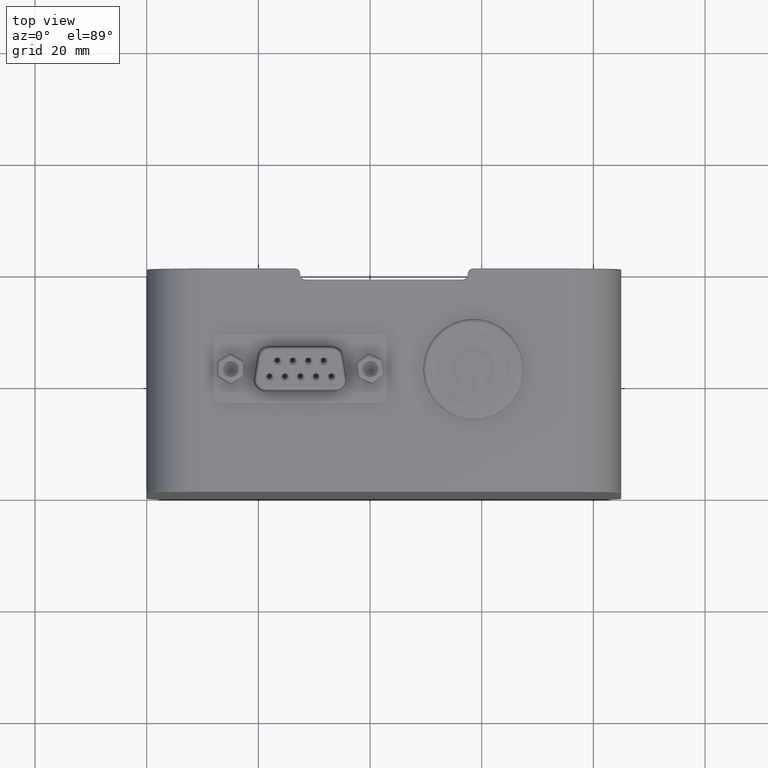
[diagram: clean part render]
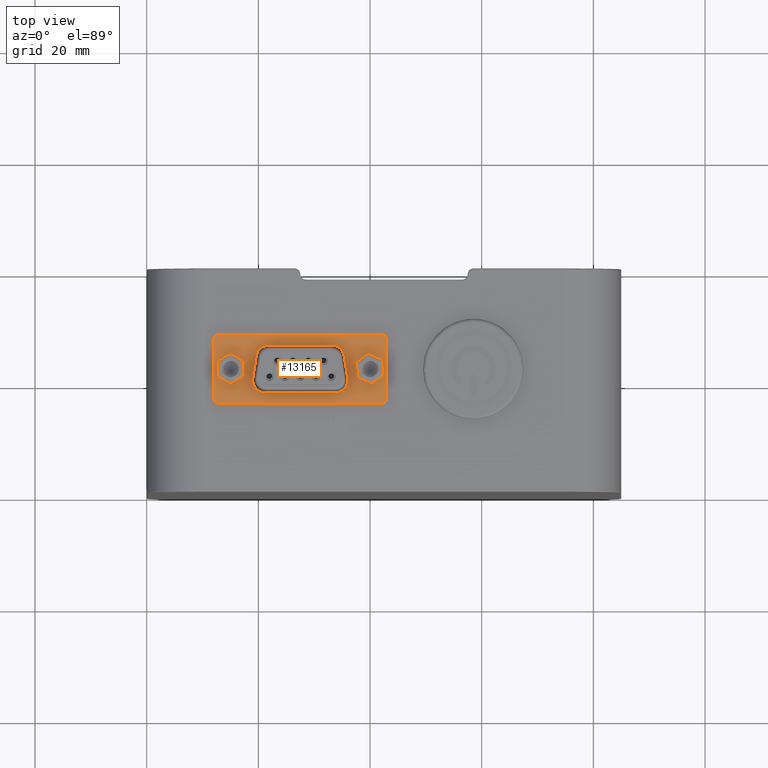
[diagram: same view with one face highlighted and labeled with its STEP entity id]
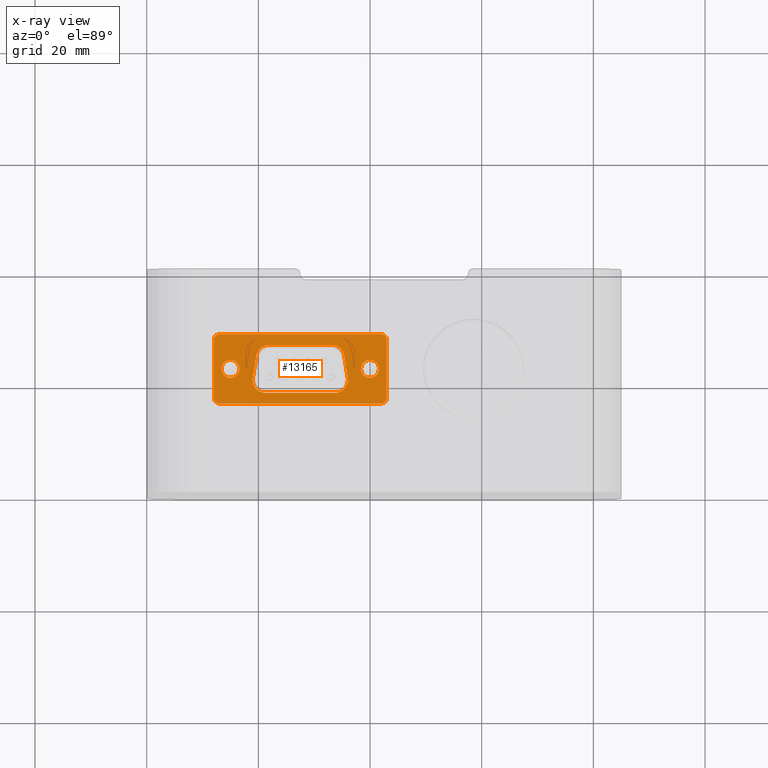
[diagram: x-ray of the same camera — body ghosted, the highlighted face saturated]
A machine part, top view. The second image highlights one B-rep face of the part: STEP entity #13165.
The next image is the same camera in x-ray: the body ghosted, the highlighted face saturated — about 0% of this face is hidden behind the body in this view.
In plain terms, the highlighted planar face has unit normal (0, -0, 1).
Its self-contained STEP definition (entity closure, byte-faithful):
#304 = CARTESIAN_POINT ( 'NONE',  ( 19.63025740159417509, 24.35386995013618616, 85.79999999999998295 ) ) ;
#307 = EDGE_CURVE ( 'NONE', #22066, #20731, #17811, .T. ) ;
#540 = CARTESIAN_POINT ( 'NONE',  ( 42.03170580112831800, 28.19999999999999574, 85.79999999999996874 ) ) ;
#543 = CIRCLE ( 'NONE', #44293, 1.600000000000002531 ) ;
#626 = CARTESIAN_POINT ( 'NONE',  ( 20.02461420377875712, 25.33303692648783212, 85.79999999999996874 ) ) ;
#752 = VECTOR ( 'NONE', #20852, 1000.000000000000000 ) ;
#997 = LINE ( 'NONE', #4599, #37131 ) ;
#1014 = VERTEX_POINT ( 'NONE', #40447 ) ;
#1020 = CARTESIAN_POINT ( 'NONE',  ( 21.27002508246598822, 17.70775293872348399, 85.79999999999998295 ) ) ;
#1024 = CARTESIAN_POINT ( 'NONE',  ( 35.67404988933617460, 18.77355853616863257, 85.79999999999996874 ) ) ;
#1144 = EDGE_CURVE ( 'NONE', #32213, #29246, #24445, .T. ) ;
#1216 = FACE_BOUND ( 'NONE', #4856, .T. ) ;
#1236 = CARTESIAN_POINT ( 'NONE',  ( 18.95347219625220703, 20.02192717980700110, 85.79999999999995453 ) ) ;
#1615 = EDGE_CURVE ( 'NONE', #1014, #37985, #26118, .T. ) ;
#1977 = EDGE_LOOP ( 'NONE', ( #30967, #36039 ) ) ;
#2658 = CARTESIAN_POINT ( 'NONE',  ( 13.41074277508548462, 21.81490145041874840, 85.79999999999948557 ) ) ;
#3404 = CARTESIAN_POINT ( 'NONE',  ( 33.72997491753389454, 17.70775293872349110, 85.79999999999998295 ) ) ;
#3677 = EDGE_CURVE ( 'NONE', #20036, #24135, #31030, .T. ) ;
#3729 = CARTESIAN_POINT ( 'NONE',  ( 20.93954623738393650, 17.72531744992117098, 85.79999999999996874 ) ) ;
#3800 = CIRCLE ( 'NONE', #30289, 1.000000000000000888 ) ;
#3965 = CARTESIAN_POINT ( 'NONE',  ( 33.72997491753389454, 17.70775293872349110, 85.79999999999998295 ) ) ;
#4092 = EDGE_CURVE ( 'NONE', #23558, #20036, #3800, .T. ) ;
#4141 = AXIS2_PLACEMENT_3D ( 'NONE', #38510, #21866, #7724 ) ;
#4599 = CARTESIAN_POINT ( 'NONE',  ( 19.00525740159421773, 20.35386995013618616, 85.79999999999996874 ) ) ;
#4625 = CARTESIAN_POINT ( 'NONE',  ( 36.02049422704354953, 20.18880220744848231, 85.79999999999999716 ) ) ;
#4856 = EDGE_LOOP ( 'NONE', ( #17518, #38090, #28895, #25992, #20497, #14773, #9333, #43853 ) ) ;
#4970 = CARTESIAN_POINT ( 'NONE',  ( 35.32870598782847793, 24.61610532920997940, 85.79999999999995453 ) ) ;
#5033 = FACE_BOUND ( 'NONE', #24716, .T. ) ;
#5222 = DIRECTION ( 'NONE',  ( -1.000000000000000000, 0.000000000000000000, 0.000000000000000000 ) ) ;
#5363 = B_SPLINE_CURVE_WITH_KNOTS ( 'NONE', 3,
 ( #7303, #4625, #24373, #37877, #42136, #11120, #34472, #1024, #21000, #31766, #28173, #31540, #34698, #35359, #41912, #3965 ),
 .UNSPECIFIED., .F., .F.,
 ( 4, 2, 2, 2, 2, 2, 2, 4 ),
 ( 0.000000000000000000, 0.1249999999999995559, 0.2499999999999991118, 0.3749999999999986677, 0.4999999999999982236, 0.6249999999999977796, 0.7499999999999973355, 1.000000000000000000 ),
 .UNSPECIFIED. ) ;
#5597 = LINE ( 'NONE', #19285, #40493 ) ;
#5634 = CARTESIAN_POINT ( 'NONE',  ( 33.23682024854078065, 26.29221647001305229, 85.79999999999996874 ) ) ;
#6019 = EDGE_CURVE ( 'NONE', #24135, #22066, #18944, .T. ) ;
#6111 = CIRCLE ( 'NONE', #16129, 1.000000000000000888 ) ;
#6307 = CARTESIAN_POINT ( 'NONE',  ( 13.41074277508548462, 22.18509854958124095, 85.79999999999948557 ) ) ;
#6705 = CARTESIAN_POINT ( 'NONE',  ( 20.19923457656094001, 25.54888570394854952, 85.79999999999996874 ) ) ;
#6879 = CARTESIAN_POINT ( 'NONE',  ( 21.10296071021913278, 17.70779266289106957, 85.79999999999999716 ) ) ;
#6929 = CARTESIAN_POINT ( 'NONE',  ( 19.65064149701092333, 24.48413000118536687, 85.79999999999999716 ) ) ;
#7003 = ORIENTED_EDGE ( 'NONE', *, *, #1144, .T. ) ;
#7298 = CARTESIAN_POINT ( 'NONE',  ( 19.63698784180859391, 18.38307429673947624, 85.79999999999995453 ) ) ;
#7303 = CARTESIAN_POINT ( 'NONE',  ( 35.99474259840575741, 20.35386995013626432, 85.79999999999998295 ) ) ;
#7482 = EDGE_CURVE ( 'NONE', #20731, #32213, #6111, .T. ) ;
#7580 = CARTESIAN_POINT ( 'NONE',  ( 19.77960158311863381, 24.88716255596620286, 85.79999999999998295 ) ) ;
#7698 = DIRECTION ( 'NONE',  ( -0.000000000000000000, 1.000000000000000000, 1.224646799147477453E-16 ) ) ;
#7724 = DIRECTION ( 'NONE',  ( 0.000000000000000000, -1.000000000000000000, -1.224646799147477453E-16 ) ) ;
#7786 = CARTESIAN_POINT ( 'NONE',  ( 41.58925722491452603, 22.18509854958106331, 85.79999999999864713 ) ) ;
#8321 = CARTESIAN_POINT ( 'NONE',  ( 35.10220822707292854, 25.12499657488864102, 85.79999999999998295 ) ) ;
#8408 = CARTESIAN_POINT ( 'NONE',  ( 19.42008832287460862, 18.63590599965004557, 85.79999999999996874 ) ) ;
#8548 = CARTESIAN_POINT ( 'NONE',  ( 12.00074277508546672, 16.79999999999997584, 85.79999999999996874 ) ) ;
#8856 = CARTESIAN_POINT ( 'NONE',  ( 42.99925722491452262, 27.19999999999998508, 85.79999999999996874 ) ) ;
#9001 = CARTESIAN_POINT ( 'NONE',  ( 34.13328324605661379, 26.05377853820509415, 85.79999999999996874 ) ) ;
#9333 = ORIENTED_EDGE ( 'NONE', *, *, #13803, .T. ) ;
#9543 = VECTOR ( 'NONE', #19712, 1000.000000000000000 ) ;
#9755 = EDGE_CURVE ( 'NONE', #29813, #33818, #41244, .T. ) ;
#9761 = ORIENTED_EDGE ( 'NONE', *, *, #7482, .T. ) ;
#9891 = LINE ( 'NONE', #13261, #17778 ) ;
#10836 = CARTESIAN_POINT ( 'NONE',  ( 13.41074277508548462, 15.60524559223843433, 85.79999999999996874 ) ) ;
#11120 = CARTESIAN_POINT ( 'NONE',  ( 35.88990714958671902, 19.21405861103163204, 85.79999999999996874 ) ) ;
#11241 = CARTESIAN_POINT ( 'NONE',  ( 21.27002508246598822, 17.70775293872348399, 85.79999999999998295 ) ) ;
#11532 = FACE_BOUND ( 'NONE', #1977, .T. ) ;
#11630 = VECTOR ( 'NONE', #25881, 1000.000000000000114 ) ;
#11728 = AXIS2_PLACEMENT_3D ( 'NONE', #26519, #26314, #5222 ) ;
#11983 = PLANE ( 'NONE',  #4141 ) ;
#12115 = ORIENTED_EDGE ( 'NONE', *, *, #14444, .T. ) ;
#12869 = CARTESIAN_POINT ( 'NONE',  ( 33.10497491753401533, 26.29224706127651601, 85.79999999999998295 ) ) ;
#13014 = CARTESIAN_POINT ( 'NONE',  ( 42.03170580112831800, 15.79999999999997407, 85.79999999999996874 ) ) ;
#13082 = EDGE_CURVE ( 'NONE', #43821, #20737, #543, .T. ) ;
#13165 = ADVANCED_FACE ( 'NONE', ( #5033, #11532, #1216, #29044 ), #11983, .T. ) ;
#13261 = CARTESIAN_POINT ( 'NONE',  ( 42.03170580112831800, 26.29224706127650180, 85.79999999999996874 ) ) ;
#13262 = EDGE_CURVE ( 'NONE', #33818, #36490, #997, .T. ) ;
#13320 = DIRECTION ( 'NONE',  ( -1.000000000000000000, 0.000000000000000000, 0.000000000000000000 ) ) ;
#13803 = EDGE_CURVE ( 'NONE', #39050, #43529, #9891, .T. ) ;
#14045 = CARTESIAN_POINT ( 'NONE',  ( 20.46281335109192767, 17.84833193380993777, 85.79999999999995453 ) ) ;
#14095 = CARTESIAN_POINT ( 'NONE',  ( 20.51099063616633345, 25.83281942614440041, 85.79999999999998295 ) ) ;
#14220 = LINE ( 'NONE', #10836, #26923 ) ;
#14313 = CARTESIAN_POINT ( 'NONE',  ( 20.89708517805082977, 26.06581810715903202, 85.79999999999995453 ) ) ;
#14444 = EDGE_CURVE ( 'NONE', #40914, #23558, #23568, .T. ) ;
#14463 = EDGE_CURVE ( 'NONE', #29246, #40914, #27216, .T. ) ;
#14601 = ORIENTED_EDGE ( 'NONE', *, *, #37244, .T. ) ;
#14656 = CARTESIAN_POINT ( 'NONE',  ( 19.00525740159422128, 20.35386995013618616, 85.79999999999998295 ) ) ;
#14773 = ORIENTED_EDGE ( 'NONE', *, *, #23607, .T. ) ;
#14991 = CARTESIAN_POINT ( 'NONE',  ( 35.99474259840575741, 20.35386995013626432, 85.79999999999998295 ) ) ;
#15376 = CARTESIAN_POINT ( 'NONE',  ( 18.97332458939295918, 19.69541911477735141, 85.79999999999995453 ) ) ;
#15508 = CARTESIAN_POINT ( 'NONE',  ( 35.08461670652601327, 25.15565814558692281, 85.79999999999995453 ) ) ;
#16129 = AXIS2_PLACEMENT_3D ( 'NONE', #39733, #28474, #42211 ) ;
#17238 = CARTESIAN_POINT ( 'NONE',  ( 19.63025740159417509, 24.35386995013618616, 85.79999999999998295 ) ) ;
#17407 = CARTESIAN_POINT ( 'NONE',  ( 20.62001709053688359, 17.79533714970644098, 85.79999999999996874 ) ) ;
#17518 = ORIENTED_EDGE ( 'NONE', *, *, #1615, .T. ) ;
#17683 = CARTESIAN_POINT ( 'NONE',  ( 19.69722915741348146, 24.67433387917301957, 85.79999999999996874 ) ) ;
#17778 = VECTOR ( 'NONE', #41562, 1000.000000000000000 ) ;
#17811 = LINE ( 'NONE', #540, #38759 ) ;
#17893 = CARTESIAN_POINT ( 'NONE',  ( 21.89502508246597401, 26.29224706127650535, 85.79999999999998295 ) ) ;
#18275 = DIRECTION ( 'NONE',  ( 0.1543768802735996371, 0.9880120337511030248, 0.000000000000000000 ) ) ;
#18528 = EDGE_CURVE ( 'NONE', #26626, #29813, #43309, .T. ) ;
#18563 = CARTESIAN_POINT ( 'NONE',  ( 12.00074277508547027, 27.19999999999998153, 85.79999999999996874 ) ) ;
#18944 = CIRCLE ( 'NONE', #44045, 1.000000000000000888 ) ;
#19100 = CARTESIAN_POINT ( 'NONE',  ( 34.00709545950285673, 26.11208715574512595, 85.79999999999998295 ) ) ;
#19285 = CARTESIAN_POINT ( 'NONE',  ( 41.58925722491452603, 15.60524559223843433, 85.79999999999996874 ) ) ;
#19376 = ORIENTED_EDGE ( 'NONE', *, *, #3677, .T. ) ;
#19712 = DIRECTION ( 'NONE',  ( -1.000000000000000000, -9.997287304757412637E-33, 8.163404592831908241E-17 ) ) ;
#20036 = VERTEX_POINT ( 'NONE', #32841 ) ;
#20343 = CARTESIAN_POINT ( 'NONE',  ( 41.99925722491452262, 28.19999999999999574, 85.79999999999996874 ) ) ;
#20397 = DIRECTION ( 'NONE',  ( -1.000000000000000000, 0.000000000000000000, 0.000000000000000000 ) ) ;
#20410 = CARTESIAN_POINT ( 'NONE',  ( 20.68092914203957022, 25.95352060894878221, 85.79999999999996874 ) ) ;
#20497 = ORIENTED_EDGE ( 'NONE', *, *, #13262, .T. ) ;
#20518 = ORIENTED_EDGE ( 'NONE', *, *, #13082, .T. ) ;
#20731 = VERTEX_POINT ( 'NONE', #40833 ) ;
#20737 = VERTEX_POINT ( 'NONE', #2658 ) ;
#20827 = CARTESIAN_POINT ( 'NONE',  ( 19.94752411116018109, 25.21736337732916411, 85.79999999999995453 ) ) ;
#20852 = DIRECTION ( 'NONE',  ( 0.000000000000000000, -1.000000000000000000, -1.224646799147477453E-16 ) ) ;
#21000 = CARTESIAN_POINT ( 'NONE',  ( 35.57962016461974031, 18.63615550037048862, 85.79999999999998295 ) ) ;
#21051 = CARTESIAN_POINT ( 'NONE',  ( 21.09184157605156429, 26.14696400558245060, 85.80000000000001137 ) ) ;
#21266 = CARTESIAN_POINT ( 'NONE',  ( 21.62959826834614674, 26.29218547592049759, 85.79999999999998295 ) ) ;
#21397 = DIRECTION ( 'NONE',  ( -1.000000000000000000, -9.997287304757412637E-33, 8.163404592831908241E-17 ) ) ;
#21793 = CARTESIAN_POINT ( 'NONE',  ( 34.99196921780653469, 25.30489118911448898, 85.79999999999996874 ) ) ;
#21866 = DIRECTION ( 'NONE',  ( 8.163404592831908241E-17, -1.224646799147477453E-16, 1.000000000000000000 ) ) ;
#22017 = CARTESIAN_POINT ( 'NONE',  ( 34.48880989242997686, 25.83258636706878875, 85.79999999999996874 ) ) ;
#22066 = VERTEX_POINT ( 'NONE', #20343 ) ;
#22235 = CARTESIAN_POINT ( 'NONE',  ( 33.84176257935845200, 26.17085559411291484, 85.79999999999995453 ) ) ;
#22464 = CARTESIAN_POINT ( 'NONE',  ( 33.81233227214335102, 26.18058496157600956, 85.79999999999995453 ) ) ;
#22684 = CARTESIAN_POINT ( 'NONE',  ( 33.43193602652750940, 26.27555038221079187, 85.79999999999996874 ) ) ;
#22741 = CARTESIAN_POINT ( 'NONE',  ( 35.36974259840581425, 24.35386995013614708, 85.79999999999996874 ) ) ;
#22902 = DIRECTION ( 'NONE',  ( 1.000000000000000000, 9.997287304757412637E-33, -8.163404592831908241E-17 ) ) ;
#23116 = VECTOR ( 'NONE', #41396, 1000.000000000000000 ) ;
#23558 = VERTEX_POINT ( 'NONE', #27336 ) ;
#23568 = LINE ( 'NONE', #13014, #40064 ) ;
#23607 = EDGE_CURVE ( 'NONE', #36490, #39050, #38996, .T. ) ;
#24135 = VERTEX_POINT ( 'NONE', #8856 ) ;
#24373 = CARTESIAN_POINT ( 'NONE',  ( 36.02840694307725045, 20.02464131984718421, 85.79999999999994031 ) ) ;
#24420 = CARTESIAN_POINT ( 'NONE',  ( 21.05883185116591960, 26.13431680921846478, 85.79999999999998295 ) ) ;
#24445 = LINE ( 'NONE', #31401, #752 ) ;
#24570 = DIRECTION ( 'NONE',  ( -4.032626203961566192E-16, 1.224646799147193709E-16, -1.000000000000000000 ) ) ;
#24643 = CARTESIAN_POINT ( 'NONE',  ( 19.86393661260260757, 25.06308499034546600, 85.79999999999998295 ) ) ;
#24661 = ORIENTED_EDGE ( 'NONE', *, *, #307, .T. ) ;
#24716 = EDGE_LOOP ( 'NONE', ( #20518, #14601 ) ) ;
#25028 = CARTESIAN_POINT ( 'NONE',  ( 19.17264531758895885, 19.05947042823288484, 85.79999999999995453 ) ) ;
#25525 = CARTESIAN_POINT ( 'NONE',  ( 21.89502508246597401, 26.29224706127650535, 85.79999999999998295 ) ) ;
#25881 = DIRECTION ( 'NONE',  ( 0.1543768802736007473, -0.9880120337511028028, 0.000000000000000000 ) ) ;
#25992 = ORIENTED_EDGE ( 'NONE', *, *, #9755, .T. ) ;
#26057 = CARTESIAN_POINT ( 'NONE',  ( 34.70215964624853200, 25.65038763318003845, 85.79999999999995453 ) ) ;
#26118 = LINE ( 'NONE', #22741, #11630 ) ;
#26222 = CARTESIAN_POINT ( 'NONE',  ( 42.03170580112831800, 17.70775293872349465, 85.79999999999996874 ) ) ;
#26314 = DIRECTION ( 'NONE',  ( -6.481838911606180192E-16, 1.224646799147193709E-16, -1.000000000000000000 ) ) ;
#26357 = DIRECTION ( 'NONE',  ( 6.481838911606180192E-16, -1.224646799147193709E-16, 1.000000000000000000 ) ) ;
#26519 = CARTESIAN_POINT ( 'NONE',  ( 40.00000000000000711, 22.00000000000000000, 85.79999999999729710 ) ) ;
#26626 = VERTEX_POINT ( 'NONE', #3404 ) ;
#26923 = VECTOR ( 'NONE', #7698, 1000.000000000000000 ) ;
#27107 = CARTESIAN_POINT ( 'NONE',  ( 41.58925722491452603, 21.81490145041894024, 85.79999999999863292 ) ) ;
#27216 = CIRCLE ( 'NONE', #34376, 1.000000000000000888 ) ;
#27260 = CARTESIAN_POINT ( 'NONE',  ( 14.99999999999998046, 21.99999999999999645, 85.79999999999901661 ) ) ;
#27336 = CARTESIAN_POINT ( 'NONE',  ( 41.99925722491452973, 15.79999999999997762, 85.79999999999996874 ) ) ;
#27572 = CARTESIAN_POINT ( 'NONE',  ( 20.29803982515503336, 25.65015457410434507, 85.79999999999996874 ) ) ;
#27668 = CARTESIAN_POINT ( 'NONE',  ( 42.99925722491452262, 15.60524559223843433, 85.79999999999996874 ) ) ;
#27735 = CARTESIAN_POINT ( 'NONE',  ( 20.16006193275768510, 17.98729214234864315, 85.79999999999995453 ) ) ;
#28002 = CARTESIAN_POINT ( 'NONE',  ( 19.82090837025702257, 24.97643002155061964, 85.79999999999999716 ) ) ;
#28037 = EDGE_CURVE ( 'NONE', #43529, #1014, #36620, .T. ) ;
#28173 = CARTESIAN_POINT ( 'NONE',  ( 35.24398291725110255, 18.27018561075485437, 85.79999999999996874 ) ) ;
#28474 = DIRECTION ( 'NONE',  ( 4.032626203961566192E-16, -1.224646799147193709E-16, 1.000000000000000000 ) ) ;
#28895 = ORIENTED_EDGE ( 'NONE', *, *, #18528, .T. ) ;
#28976 = CARTESIAN_POINT ( 'NONE',  ( 33.74950386158394622, 26.19999049159929783, 85.79999999999998295 ) ) ;
#29044 = FACE_OUTER_BOUND ( 'NONE', #35703, .T. ) ;
#29066 = CARTESIAN_POINT ( 'NONE',  ( 19.00525740159422128, 20.35386995013618616, 85.79999999999998295 ) ) ;
#29194 = CARTESIAN_POINT ( 'NONE',  ( 35.11147747956691489, 25.10838723645041526, 85.79999999999996874 ) ) ;
#29246 = VERTEX_POINT ( 'NONE', #8548 ) ;
#29286 = CARTESIAN_POINT ( 'NONE',  ( 19.11055957682819795, 19.21380907518217640, 85.79999999999998295 ) ) ;
#29813 = VERTEX_POINT ( 'NONE', #11241 ) ;
#30289 = AXIS2_PLACEMENT_3D ( 'NONE', #38352, #30704, #20397 ) ;
#30402 = EDGE_CURVE ( 'NONE', #37985, #26626, #5363, .T. ) ;
#30521 = DIRECTION ( 'NONE',  ( 1.000000000000000000, 0.000000000000000000, 0.000000000000000000 ) ) ;
#30704 = DIRECTION ( 'NONE',  ( 6.481838911606180192E-16, -1.224646799147193709E-16, 1.000000000000000000 ) ) ;
#30967 = ORIENTED_EDGE ( 'NONE', *, *, #43228, .T. ) ;
#31030 = LINE ( 'NONE', #27668, #23116 ) ;
#31085 = CIRCLE ( 'NONE', #11728, 1.600000000000004086 ) ;
#31372 = CARTESIAN_POINT ( 'NONE',  ( 19.84978052145573812, 25.03550948205804971, 85.79999999999999716 ) ) ;
#31401 = CARTESIAN_POINT ( 'NONE',  ( 12.00074277508547027, 15.60524559223843433, 85.79999999999996874 ) ) ;
#31540 = CARTESIAN_POINT ( 'NONE',  ( 34.98301639739003122, 18.07295957404970466, 85.79999999999996874 ) ) ;
#31766 = CARTESIAN_POINT ( 'NONE',  ( 35.36330367069703584, 18.38282479601901898, 85.79999999999996874 ) ) ;
#32213 = VERTEX_POINT ( 'NONE', #18563 ) ;
#32576 = CARTESIAN_POINT ( 'NONE',  ( 34.84764844372379144, 25.50111981642399428, 85.79999999999996874 ) ) ;
#32793 = CARTESIAN_POINT ( 'NONE',  ( 35.05777556577159970, 25.20125616518621570, 85.79999999999998295 ) ) ;
#32841 = CARTESIAN_POINT ( 'NONE',  ( 42.99925722491452973, 16.79999999999998295, 85.79999999999996874 ) ) ;
#33818 = VERTEX_POINT ( 'NONE', #14656 ) ;
#34114 = DIRECTION ( 'NONE',  ( 4.032626203961566192E-16, -1.224646799147193709E-16, 1.000000000000000000 ) ) ;
#34376 = AXIS2_PLACEMENT_3D ( 'NONE', #37505, #34114, #30521 ) ;
#34472 = CARTESIAN_POINT ( 'NONE',  ( 35.82862438977789310, 19.06184373845279367, 85.79999999999998295 ) ) ;
#34693 = CARTESIAN_POINT ( 'NONE',  ( 20.01913244820885396, 18.07133870365961315, 85.79999999999995453 ) ) ;
#34698 = CARTESIAN_POINT ( 'NONE',  ( 34.84011255989906175, 17.98779179623205593, 85.79999999999998295 ) ) ;
#34887 = DIRECTION ( 'NONE',  ( 1.000000000000000000, 0.000000000000000000, 0.000000000000000000 ) ) ;
#35096 = EDGE_CURVE ( 'NONE', #42185, #44044, #5597, .T. ) ;
#35359 = CARTESIAN_POINT ( 'NONE',  ( 34.38546195442740583, 17.77785252177377018, 85.79999999999995453 ) ) ;
#35683 = DIRECTION ( 'NONE',  ( 0.000000000000000000, -1.000000000000000000, -1.224646799147477453E-16 ) ) ;
#35703 = EDGE_LOOP ( 'NONE', ( #12115, #36807, #19376, #38032, #24661, #9761, #7003, #36901 ) ) ;
#36039 = ORIENTED_EDGE ( 'NONE', *, *, #35096, .T. ) ;
#36490 = VERTEX_POINT ( 'NONE', #304 ) ;
#36620 = B_SPLINE_CURVE_WITH_KNOTS ( 'NONE', 3,
 ( #39787, #5634, #22684, #39553, #28976, #22464, #22235, #19100, #9001, #42709, #22017, #26057, #32576, #21793, #32793, #15508, #8321, #29194, #42935, #4970, #39334 ),
 .UNSPECIFIED., .F., .F.,
 ( 4, 1, 1, 2, 2, 2, 2, 1, 1, 1, 2, 2, 4 ),
 ( 0.000000000000000000, 0.1249999999999902855, 0.1874999999999889810, 0.2187499999999851230, 0.2499999999999812927, 0.3749999999999785172, 0.4999999999999757971, 0.6249999999999729106, 0.6874999999999708011, 0.7187499999999726885, 0.7343749999999736877, 0.7499999999999746869, 1.000000000000000000 ),
 .UNSPECIFIED. ) ;
#36807 = ORIENTED_EDGE ( 'NONE', *, *, #4092, .T. ) ;
#36901 = ORIENTED_EDGE ( 'NONE', *, *, #14463, .T. ) ;
#37131 = VECTOR ( 'NONE', #18275, 1000.000000000000000 ) ;
#37244 = EDGE_CURVE ( 'NONE', #20737, #43821, #14220, .T. ) ;
#37505 = CARTESIAN_POINT ( 'NONE',  ( 13.00074277508546317, 16.79999999999997584, 85.79999999999996874 ) ) ;
#37877 = CARTESIAN_POINT ( 'NONE',  ( 36.00855454993650540, 19.69813325481751676, 85.79999999999995453 ) ) ;
#37985 = VERTEX_POINT ( 'NONE', #14991 ) ;
#38021 = CARTESIAN_POINT ( 'NONE',  ( 13.00074277508546317, 15.79999999999997407, 85.79999999999996874 ) ) ;
#38032 = ORIENTED_EDGE ( 'NONE', *, *, #6019, .T. ) ;
#38090 = ORIENTED_EDGE ( 'NONE', *, *, #30402, .T. ) ;
#38136 = CARTESIAN_POINT ( 'NONE',  ( 21.00963680751292983, 26.11483671916545291, 85.79999999999998295 ) ) ;
#38352 = CARTESIAN_POINT ( 'NONE',  ( 41.99925722491452973, 16.79999999999997939, 85.79999999999996874 ) ) ;
#38510 = CARTESIAN_POINT ( 'NONE',  ( 42.03170580112831800, 15.60524559223843433, 85.79999999999996874 ) ) ;
#38759 = VECTOR ( 'NONE', #21397, 1000.000000000000000 ) ;
#38996 = B_SPLINE_CURVE_WITH_KNOTS ( 'NONE', 3,
 ( #17238, #6929, #17683, #7580, #28002, #31372, #24643, #20827, #626, #6705, #27572, #14095, #20410, #14313, #38136, #24420, #21051, #41302, #41073, #21266, #17893 ),
 .UNSPECIFIED., .F., .F.,
 ( 4, 1, 1, 2, 2, 2, 2, 1, 1, 1, 2, 2, 4 ),
 ( 0.000000000000000000, 0.1249999999999905631, 0.1874999999999858447, 0.2187499999999841516, 0.2499999999999824585, 0.3749999999999784617, 0.4999999999999744649, 0.6249999999999704681, 0.6874999999999691358, 0.7187499999999705791, 0.7343749999999708011, 0.7499999999999709122, 1.000000000000000000 ),
 .UNSPECIFIED. ) ;
#39050 = VERTEX_POINT ( 'NONE', #25525 ) ;
#39208 = CARTESIAN_POINT ( 'NONE',  ( 19.32721981803067024, 18.77118522594872019, 85.79999999999996874 ) ) ;
#39334 = CARTESIAN_POINT ( 'NONE',  ( 35.36974259840580714, 24.35386995013614353, 85.79999999999998295 ) ) ;
#39553 = CARTESIAN_POINT ( 'NONE',  ( 33.65492971842940051, 26.22702126152084645, 85.79999999999995453 ) ) ;
#39733 = CARTESIAN_POINT ( 'NONE',  ( 13.00074277508546317, 27.19999999999997797, 85.79999999999996874 ) ) ;
#39787 = CARTESIAN_POINT ( 'NONE',  ( 33.10497491753401533, 26.29224706127651601, 85.79999999999998295 ) ) ;
#40064 = VECTOR ( 'NONE', #22902, 1000.000000000000000 ) ;
#40085 = CARTESIAN_POINT ( 'NONE',  ( 41.99925722491452262, 27.19999999999998508, 85.79999999999996874 ) ) ;
#40447 = CARTESIAN_POINT ( 'NONE',  ( 35.36974259840580714, 24.35386995013614353, 85.79999999999998295 ) ) ;
#40493 = VECTOR ( 'NONE', #35683, 1000.000000000000000 ) ;
#40833 = CARTESIAN_POINT ( 'NONE',  ( 13.00074277508546317, 28.19999999999998863, 85.79999999999996874 ) ) ;
#40914 = VERTEX_POINT ( 'NONE', #38021 ) ;
#41073 = CARTESIAN_POINT ( 'NONE',  ( 21.37298018906171393, 26.24780375764146356, 85.80000000000001137 ) ) ;
#41244 = B_SPLINE_CURVE_WITH_KNOTS ( 'NONE', 3,
 ( #1020, #6879, #3729, #17407, #14045, #27735, #34693, #41469, #7298, #8408, #39208, #25028, #29286, #15376, #1236, #29066 ),
 .UNSPECIFIED., .F., .F.,
 ( 4, 2, 2, 2, 2, 2, 2, 4 ),
 ( 0.000000000000000000, 0.1249999999999996114, 0.2499999999999992228, 0.3749999999999988343, 0.4999999999999984457, 0.6249999999999980016, 0.7499999999999976685, 1.000000000000000000 ),
 .UNSPECIFIED. ) ;
#41302 = CARTESIAN_POINT ( 'NONE',  ( 21.10968276058459736, 26.15355804073924517, 85.79999999999996874 ) ) ;
#41396 = DIRECTION ( 'NONE',  ( -0.000000000000000000, 1.000000000000000000, 1.224646799147477453E-16 ) ) ;
#41469 = CARTESIAN_POINT ( 'NONE',  ( 19.75816592834778262, 18.26856474036476286, 85.79999999999995453 ) ) ;
#41562 = DIRECTION ( 'NONE',  ( 1.000000000000000000, 9.997287304757412637E-33, -8.163404592831908241E-17 ) ) ;
#41912 = CARTESIAN_POINT ( 'NONE',  ( 34.06593280758028897, 17.70783282198851083, 85.79999999999995453 ) ) ;
#42136 = CARTESIAN_POINT ( 'NONE',  ( 35.98046368838033260, 19.53463289906282085, 85.79999999999998295 ) ) ;
#42185 = VERTEX_POINT ( 'NONE', #7786 ) ;
#42211 = DIRECTION ( 'NONE',  ( 1.000000000000000000, 0.000000000000000000, 0.000000000000000000 ) ) ;
#42709 = CARTESIAN_POINT ( 'NONE',  ( 34.37350178404058454, 25.91457356943344692, 85.79999999999994031 ) ) ;
#42935 = CARTESIAN_POINT ( 'NONE',  ( 35.24524041758851212, 24.86279556841201455, 85.79999999999996874 ) ) ;
#43228 = EDGE_CURVE ( 'NONE', #44044, #42185, #31085, .T. ) ;
#43309 = LINE ( 'NONE', #26222, #9543 ) ;
#43529 = VERTEX_POINT ( 'NONE', #12869 ) ;
#43821 = VERTEX_POINT ( 'NONE', #6307 ) ;
#43853 = ORIENTED_EDGE ( 'NONE', *, *, #28037, .T. ) ;
#44044 = VERTEX_POINT ( 'NONE', #27107 ) ;
#44045 = AXIS2_PLACEMENT_3D ( 'NONE', #40085, #26357, #13320 ) ;
#44293 = AXIS2_PLACEMENT_3D ( 'NONE', #27260, #24570, #34887 ) ;